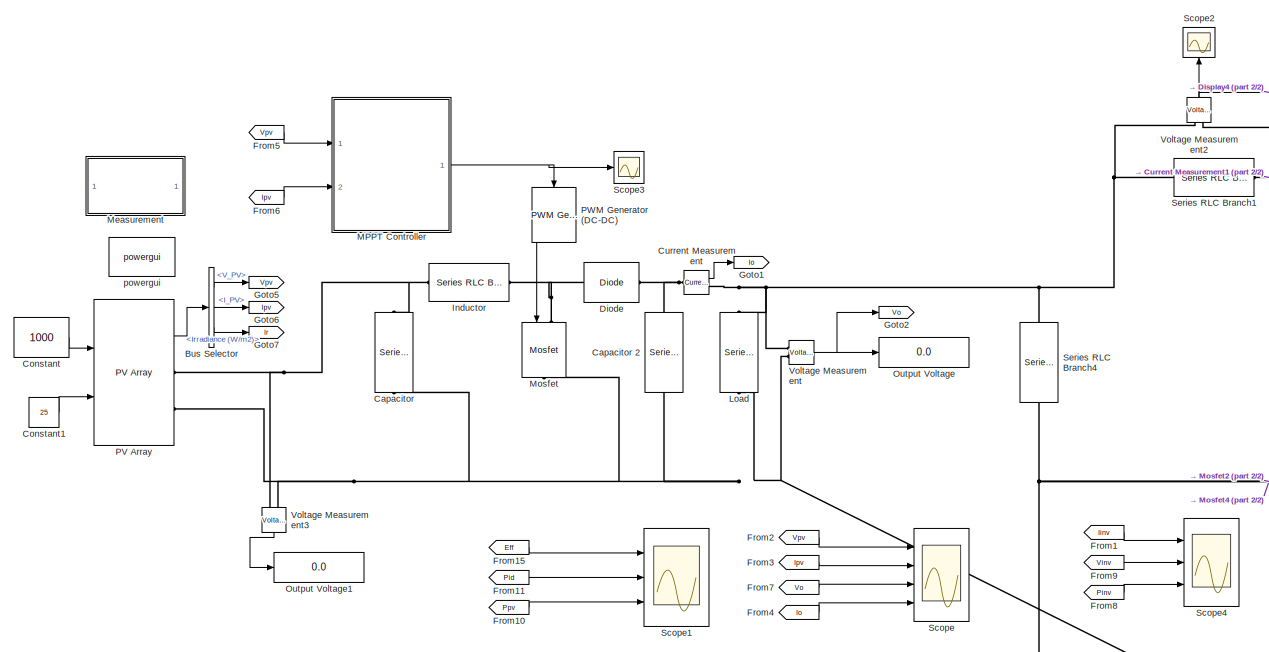
[diagram: root canvas - part 1/2, middle left region]
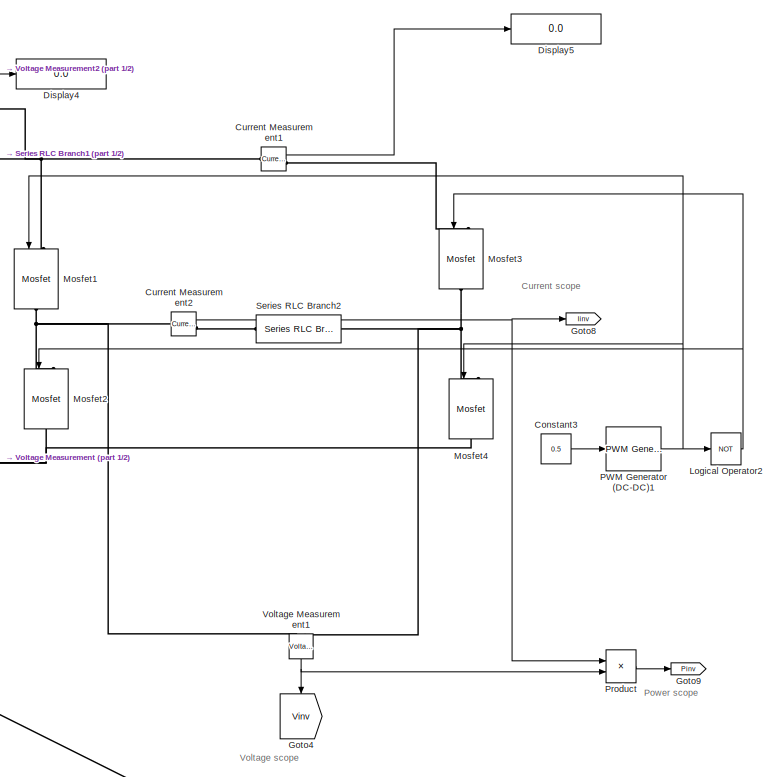
[diagram: root canvas - part 2/2, right side, full height]
MODEL slx_9b4c780f4939
KIND model
CONFIG AbsTol = auto
CONFIG EnableMultiTasking = off
CONFIG FixedStep = 5e-6
CONFIG MaxStep = auto
CONFIG MinStep = auto
CONFIG RelTol = 1e-3
CONFIG SampleTimeConstraint = Unconstrained
CONFIG Solver = ode3
CONFIG SolverName = ode3
CONFIG StartTime = 0.0
CONFIG StopTime = 2
BLOCK [BusSelector] Bus Selector
  OutputSignals = V_PV,I_PV,Irradiance (W/m2)
  Ports = [1, 3]
BLOCK [Reference] Capacitor  REF=powerlib/Elements/Series RLC Branch
  NameLocation = left
  Ports = [0, 0, 0, 0, 0, 1, 1]
  SourceBlock = powerlib/Elements/Series RLC Branch
  SourceProductBaseCode = PS
  SourceType = Series RLC Branch
BLOCK [Reference] Capacitor 2  REF=powerlib/Elements/Series RLC Branch
  NameLocation = left
  Ports = [0, 0, 0, 0, 0, 1, 1]
  SourceBlock = powerlib/Elements/Series RLC Branch
  SourceProductBaseCode = PS
  SourceType = Series RLC Branch
BLOCK [Constant] Constant
  Value = 1000
BLOCK [Constant] Constant1
  Value = 25
BLOCK [Constant] Constant3
  Value = 0.5
BLOCK [Reference] Current Measurement  REF=powerlib/Measurements/Current Measurement
  Ports = [0, 1, 0, 0, 0, 1, 1]
  SourceBlock = powerlib/Measurements/Current Measurement
  SourceProductBaseCode = PS
  SourceType = Current Measurement
  UserDataPersistent = on
BLOCK [Reference] Current Measurement1  REF=powerlib/Measurements/Current Measurement
  Ports = [0, 1, 0, 0, 0, 1, 1]
  SourceBlock = powerlib/Measurements/Current Measurement
  SourceProductBaseCode = PS
  SourceType = Current Measurement
  UserDataPersistent = on
BLOCK [Reference] Current Measurement2  REF=powerlib/Measurements/Current Measurement
  Ports = [0, 1, 0, 0, 0, 1, 1]
  SourceBlock = powerlib/Measurements/Current Measurement
  SourceProductBaseCode = PS
  SourceType = Current Measurement
  UserDataPersistent = on
BLOCK [Reference] Diode  REF=powerlib/Power
Electronics/Diode
  Ports = [0, 0, 0, 0, 0, 1, 1]
  SourceBlock = powerlib/Power\nElectronics/Diode
  SourceProductBaseCode = PS
  SourceType = Diode
BLOCK [Display] Display4
  Decimation = 1
  Ports = [1]
BLOCK [Display] Display5
  Decimation = 1
  Ports = [1]
BLOCK [From] From1
  GotoTag = Iinv
BLOCK [From] From10
  GotoTag = Ppv
  TagVisibility = global
BLOCK [From] From11
  GotoTag = Pid
  TagVisibility = global
BLOCK [From] From15
  GotoTag = Eff
  TagVisibility = global
BLOCK [From] From2
  GotoTag = Vpv
  TagVisibility = global
BLOCK [From] From3
  GotoTag = Ipv
  TagVisibility = global
BLOCK [From] From4
  GotoTag = Io
BLOCK [From] From5
  GotoTag = Vpv
  TagVisibility = global
BLOCK [From] From6
  GotoTag = Ipv
  TagVisibility = global
BLOCK [From] From7
  GotoTag = Vo
BLOCK [From] From8
  GotoTag = Pinv
BLOCK [From] From9
  GotoTag = Vinv
BLOCK [Goto] Goto1
  GotoTag = Io
BLOCK [Goto] Goto2
  GotoTag = Vo
BLOCK [Goto] Goto4
  GotoTag = Vinv
  NameLocation = left
BLOCK [Goto] Goto5
  GotoTag = Vpv
  TagVisibility = global
BLOCK [Goto] Goto6
  GotoTag = Ipv
  TagVisibility = global
BLOCK [Goto] Goto7
  GotoTag = Ir
  TagVisibility = global
BLOCK [Goto] Goto8
  GotoTag = Iinv
BLOCK [Goto] Goto9
  GotoTag = Pinv
BLOCK [Reference] Inductor  REF=powerlib/Elements/Series RLC Branch
  Ports = [0, 0, 0, 0, 0, 1, 1]
  SourceBlock = powerlib/Elements/Series RLC Branch
  SourceProductBaseCode = PS
  SourceType = Series RLC Branch
BLOCK [Reference] Load  REF=powerlib/Elements/Series RLC Branch
  NameLocation = left
  Ports = [0, 0, 0, 0, 0, 1, 1]
  SourceBlock = powerlib/Elements/Series RLC Branch
  SourceProductBaseCode = PS
  SourceType = Series RLC Branch
BLOCK [Logic] Logical Operator2
  AllPortsSameDT = off
  Operator = NOT
  OutDataTypeStr = boolean
  Ports = [1, 1]
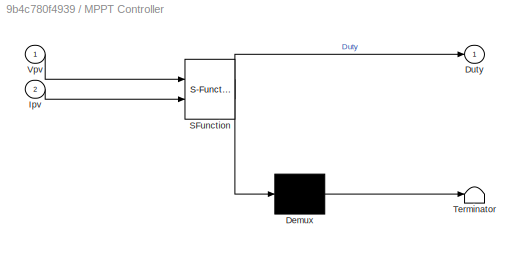
BLOCK [SubSystem] MPPT Controller
  ErrorFcn = Stateflow.Translate.translate
  PermitHierarchicalResolution = ExplicitOnly
  Ports = [2, 1]
  RequestExecContextInheritance = off
  SFBlockType = MATLAB Function
  TreatAsAtomicUnit = on
BLOCK [Demux] MPPT Controller/ Demux 
  Outputs = 1
  Ports = [1, 1]
BLOCK [S-Function] MPPT Controller/ SFunction 
  EnableBusSupport = on
  FunctionName = sf_sfun
  PortCounts = [2 2]
  Ports = [2, 2]
  SFcnIsStateOwnerBlock = off
  SFunctionDeploymentMode = off
  Tag = Stateflow S-Function 2
BLOCK [Terminator] MPPT Controller/ Terminator 
BLOCK [Outport] MPPT Controller/Duty
BLOCK [Inport] MPPT Controller/Ipv
  Port = 2
BLOCK [Inport] MPPT Controller/Vpv
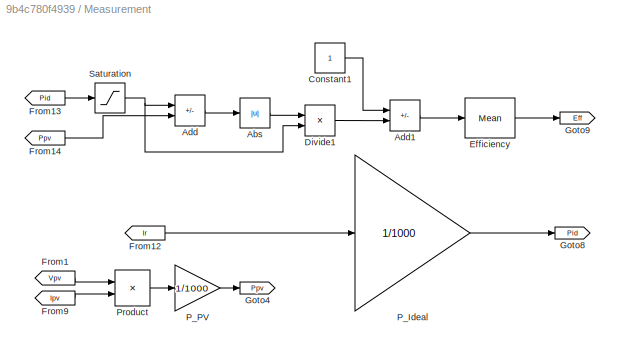
BLOCK [SubSystem] Measurement
  Ports = []
  RequestExecContextInheritance = off
BLOCK [Abs] Measurement/Abs
  SaturateOnIntegerOverflow = off
BLOCK [Sum] Measurement/Add
  IconShape = rectangular
  Inputs = +-
  Ports = [2, 1]
BLOCK [Sum] Measurement/Add1
  IconShape = rectangular
  Inputs = +-
  Ports = [2, 1]
BLOCK [Constant] Measurement/Constant1
BLOCK [Product] Measurement/Divide1
  Inputs = */
  NameLocation = top
  Ports = [2, 1]
BLOCK [Reference] Measurement/Efficiency  REF=powerlib_meascontrol/Measurements/Mean
  Ports = [1, 1]
  SourceBlock = powerlib_meascontrol/Measurements/Mean
  SourceProductBaseCode = PS
  SourceType = Mean
BLOCK [From] Measurement/From1
  GotoTag = Vpv
  TagVisibility = global
BLOCK [From] Measurement/From12
  GotoTag = Ir
  TagVisibility = global
BLOCK [From] Measurement/From13
  GotoTag = Pid
  TagVisibility = global
BLOCK [From] Measurement/From14
  GotoTag = Ppv
  TagVisibility = global
BLOCK [From] Measurement/From9
  GotoTag = Ipv
  TagVisibility = global
BLOCK [Goto] Measurement/Goto4
  GotoTag = Ppv
  TagVisibility = global
BLOCK [Goto] Measurement/Goto8
  GotoTag = Pid
  TagVisibility = global
BLOCK [Goto] Measurement/Goto9
  GotoTag = Eff
  TagVisibility = global
BLOCK [Gain] Measurement/P_Ideal
  Gain = 1/1000
BLOCK [Gain] Measurement/P_PV
  Gain = 1/1000
BLOCK [Product] Measurement/Product
  Inputs = **
  Ports = [2, 1]
BLOCK [Saturate] Measurement/Saturation
  LowerLimit = 0.001
  UpperLimit = 1000
BLOCK [Reference] Mosfet  REF=powerlib/Power
Electronics/Mosfet
  NameLocation = left
  Ports = [1, 0, 0, 0, 0, 1, 1]
  SourceBlock = powerlib/Power\nElectronics/Mosfet
  SourceProductBaseCode = PS
  SourceType = Mosfet
BLOCK [Reference] Mosfet1  REF=powerlib/Power
Electronics/Mosfet
  NameLocation = left
  Ports = [1, 0, 0, 0, 0, 1, 1]
  SourceBlock = powerlib/Power\nElectronics/Mosfet
  SourceProductBaseCode = PS
  SourceType = Mosfet
BLOCK [Reference] Mosfet2  REF=powerlib/Power
Electronics/Mosfet
  NameLocation = left
  Ports = [1, 0, 0, 0, 0, 1, 1]
  SourceBlock = powerlib/Power\nElectronics/Mosfet
  SourceProductBaseCode = PS
  SourceType = Mosfet
BLOCK [Reference] Mosfet3  REF=powerlib/Power
Electronics/Mosfet
  NameLocation = left
  Ports = [1, 0, 0, 0, 0, 1, 1]
  SourceBlock = powerlib/Power\nElectronics/Mosfet
  SourceProductBaseCode = PS
  SourceType = Mosfet
BLOCK [Reference] Mosfet4  REF=powerlib/Power
Electronics/Mosfet
  NameLocation = left
  Ports = [1, 0, 0, 0, 0, 1, 1]
  SourceBlock = powerlib/Power\nElectronics/Mosfet
  SourceProductBaseCode = PS
  SourceType = Mosfet
BLOCK [Display] Output Voltage
  Decimation = 1
  Ports = [1]
BLOCK [Display] Output Voltage1
  Decimation = 1
  Ports = [1]
BLOCK [Reference] PV Array  REF=re_lib/Solar/PV Array
  Ports = [2, 1, 0, 0, 0, 0, 2]
  SourceBlock = re_lib/Solar/PV Array
  SourceProductBaseCode = PS
  SourceType = PV array
BLOCK [Reference] PWM Generator (DC-DC)  REF=powerlib_meascontrol/Pulse & Signal
Generators/PWM Generator
(DC-DC)
  NameLocation = left
  Ports = [1, 1]
  SourceBlock = powerlib_meascontrol/Pulse & Signal\nGenerators/PWM Generator\n(DC-DC)
  SourceProductBaseCode = PS
  SourceType = PWM Generator (DC-DC)
BLOCK [Reference] PWM Generator (DC-DC)1  REF=powerlib_meascontrol/Pulse & Signal
Generators/PWM Generator
(DC-DC)
  Ports = [1, 1]
  SourceBlock = powerlib_meascontrol/Pulse & Signal\nGenerators/PWM Generator\n(DC-DC)
  SourceProductBaseCode = PS
  SourceType = PWM Generator (DC-DC)
BLOCK [Product] Product
  Ports = [2, 1]
BLOCK [Scope] Scope
  Floating = off
  NumInputPorts = 4
  Ports = [4]
  ScopeSpecificationString = Simulink.scopes.TimeScopeBlockCfg('CurrentConfiguration', extmgr.ConfigurationSet(extmgr.Configuration('Core','General UI',true,'FigureColor',[0.941176470588235 0.941176470588235 0.941176470588235]),extmgr.Configuration('Core','Source UI',true),extmgr.Configuration('Sources','WiredSimulink',true,'DataLoggingSaveFormat','Array','DataLoggingDecimation','1','DataLoggingDecimateData',true),extmgr.Conf...<+4508ch>
BLOCK [Scope] Scope1
  Floating = off
  NumInputPorts = 3
  Ports = [3]
  ScopeSpecificationString = Simulink.scopes.TimeScopeBlockCfg('CurrentConfiguration', extmgr.ConfigurationSet(extmgr.Configuration('Core','General UI',true,'FigureColor',[0.941176470588235 0.941176470588235 0.941176470588235]),extmgr.Configuration('Core','Source UI',true),extmgr.Configuration('Sources','WiredSimulink',true,'DataLoggingSaveFormat','Array','DataLoggingDecimation','1','DataLoggingDecimateData',true,'DataLogging...<+2557ch>
BLOCK [Scope] Scope2
  Floating = off
  NameLocation = right
  NumInputPorts = 1
  Ports = [1]
  ScopeSpecificationString = Simulink.scopes.TimeScopeBlockCfg('CurrentConfiguration', extmgr.ConfigurationSet(extmgr.Configuration('Core','General UI',true),extmgr.Configuration('Core','Source UI',true),extmgr.Configuration('Sources','WiredSimulink',true,'DataLoggingVariableName','ScopeData1'),extmgr.Configuration('Visuals','Time Domain',true,'SerializedDisplays',{struct('MinYLimReal','-406.13508','MaxYLimReal','406.13205','...<+1492ch>
BLOCK [Scope] Scope3
  Floating = off
  NumInputPorts = 1
  Ports = [1]
  ScopeSpecificationString = Simulink.scopes.TimeScopeBlockCfg('CurrentConfiguration', extmgr.ConfigurationSet(extmgr.Configuration('Core','General UI',true),extmgr.Configuration('Core','Source UI',true),extmgr.Configuration('Sources','WiredSimulink',true,'DataLoggingVariableName','ScopeData2'),extmgr.Configuration('Visuals','Time Domain',true,'SerializedDisplays',{struct('MinYLimReal','-0.00109','MaxYLimReal','0.01109','YLab...<+1428ch>
BLOCK [Scope] Scope4
  Floating = off
  NumInputPorts = 3
  Ports = [3]
  ScopeSpecificationString = Simulink.scopes.TimeScopeBlockCfg('CurrentConfiguration', extmgr.ConfigurationSet(extmgr.Configuration('Core','General UI',true,'FigureColor',[0.941176470588235 0.941176470588235 0.941176470588235]),extmgr.Configuration('Core','Source UI',true),extmgr.Configuration('Sources','WiredSimulink',true,'DataLoggingVariableName','ScopeData3'),extmgr.Configuration('Visuals','Time Domain',true,'SerializedDi...<+3497ch>
BLOCK [Reference] Series RLC Branch1  REF=powerlib/Elements/Series RLC Branch
  Ports = [0, 0, 0, 0, 0, 1, 1]
  SourceBlock = powerlib/Elements/Series RLC Branch
  SourceProductBaseCode = PS
  SourceType = Series RLC Branch
BLOCK [Reference] Series RLC Branch2  REF=powerlib/Elements/Series RLC Branch
  Ports = [0, 0, 0, 0, 0, 1, 1]
  SourceBlock = powerlib/Elements/Series RLC Branch
  SourceProductBaseCode = PS
  SourceType = Series RLC Branch
BLOCK [Reference] Series RLC Branch4  REF=powerlib/Elements/Series RLC Branch
  NameLocation = left
  Ports = [0, 0, 0, 0, 0, 1, 1]
  SourceBlock = powerlib/Elements/Series RLC Branch
  SourceProductBaseCode = PS
  SourceType = Series RLC Branch
BLOCK [Reference] Voltage Measurement  REF=powerlib/Measurements/Voltage Measurement
  Ports = [0, 1, 0, 0, 0, 2]
  SourceBlock = powerlib/Measurements/Voltage Measurement
  SourceProductBaseCode = PS
  SourceType = Voltage Measurement
  UserDataPersistent = on
BLOCK [Reference] Voltage Measurement1  REF=powerlib/Measurements/Voltage Measurement
  NameLocation = left
  Ports = [0, 1, 0, 0, 0, 2]
  SourceBlock = powerlib/Measurements/Voltage Measurement
  SourceProductBaseCode = PS
  SourceType = Voltage Measurement
  UserDataPersistent = on
BLOCK [Reference] Voltage Measurement2  REF=powerlib/Measurements/Voltage Measurement
  NameLocation = right
  Ports = [0, 1, 0, 0, 0, 2]
  SourceBlock = powerlib/Measurements/Voltage Measurement
  SourceProductBaseCode = PS
  SourceType = Voltage Measurement
  UserDataPersistent = on
BLOCK [Reference] Voltage Measurement3  REF=powerlib/Measurements/Voltage Measurement
  NameLocation = left
  Ports = [0, 1, 0, 0, 0, 2]
  SourceBlock = powerlib/Measurements/Voltage Measurement
  SourceProductBaseCode = PS
  SourceType = Voltage Measurement
  UserDataPersistent = on
BLOCK [Reference] powergui  REF=powerlib/powergui
  Ports = []
  Priority = 1
  SourceBlock = powerlib/powergui
  SourceProductBaseCode = PS
  SourceType = PSB option menu block
ANNOTATION (root): Current scope
ANNOTATION (root): Power scope
ANNOTATION (root): Voltage scope
LINE Bus Selector:1 -> Goto5:1
LINE Bus Selector:2 -> Goto6:1
LINE Bus Selector:3 -> Goto7:1
LINE Constant1:1 -> PV Array:2
LINE Constant3:1 -> PWM Generator (DC-DC)1:1
LINE Constant:1 -> PV Array:1
LINE Current Measurement1:1 -> Display5:1
NET Current Measurement2:1 -> Goto8:1, Product:1
LINE Current Measurement:1 -> Goto1:1
LINE From10:1 -> Scope1:3
LINE From11:1 -> Scope1:2
LINE From15:1 -> Scope1:1
LINE From1:1 -> Scope4:1
LINE From2:1 -> Scope:1
LINE From3:1 -> Scope:2
LINE From4:1 -> Scope:4
LINE From5:1 -> MPPT Controller:1
LINE From6:1 -> MPPT Controller:2
LINE From7:1 -> Scope:3
LINE From8:1 -> Scope4:3
LINE From9:1 -> Scope4:2
NET Logical Operator2:1 -> Mosfet2:1, Mosfet3:1
NET MPPT Controller:1 -> PWM Generator (DC-DC):1, Scope3:1
LINE Measurement/Abs:1 -> Measurement/Divide1:1
LINE Measurement/Add1:1 -> Measurement/Efficiency:1
LINE Measurement/Add:1 -> Measurement/Abs:1
LINE Measurement/Constant1:1 -> Measurement/Add1:1
LINE Measurement/Divide1:1 -> Measurement/Add1:2
LINE Measurement/Efficiency:1 -> Measurement/Goto9:1
LINE Measurement/From12:1 -> Measurement/P_Ideal:1
LINE Measurement/From13:1 -> Measurement/Saturation:1
LINE Measurement/From14:1 -> Measurement/Add:2
LINE Measurement/From1:1 -> Measurement/Product:1
LINE Measurement/From9:1 -> Measurement/Product:2
LINE Measurement/P_Ideal:1 -> Measurement/Goto8:1
LINE Measurement/P_PV:1 -> Measurement/Goto4:1
LINE Measurement/Product:1 -> Measurement/P_PV:1
NET Measurement/Saturation:1 -> Measurement/Add:1, Measurement/Divide1:2
LINE PV Array:1 -> Bus Selector:1
NET PWM Generator (DC-DC)1:1 -> Logical Operator2:1, Mosfet1:1, Mosfet4:1
LINE PWM Generator (DC-DC):1 -> Mosfet:1
LINE Product:1 -> Goto9:1
NET Voltage Measurement1:1 -> Goto4:1, Product:2
NET Voltage Measurement2:1 -> Display4:1, Scope2:1
LINE Voltage Measurement3:1 -> Output Voltage1:1
NET Voltage Measurement:1 -> Goto2:1, Output Voltage:1
PNET net1: Capacitor 2:LConn1 -- Current Measurement:LConn1 -- Diode:RConn1
PNET net2: Capacitor 2:RConn1 -- Capacitor:RConn1 -- Load:RConn1 -- Mosfet2:RConn1 -- Mosfet4:RConn1 -- Mosfet:RConn1 -- PV Array:RConn2 -- Series RLC Branch4:RConn1 -- Voltage Measurement3:LConn2 -- Voltage Measurement:LConn2
PNET net3: Capacitor:LConn1 -- Inductor:LConn1 -- PV Array:RConn1 -- Voltage Measurement3:LConn1
PNET net4: Current Measurement1:LConn1 -- Mosfet1:LConn1 -- Series RLC Branch1:RConn1 -- Voltage Measurement2:LConn2
PLINE Current Measurement1:RConn1 -- Mosfet3:LConn1
PNET net5: Current Measurement2:LConn1 -- Mosfet1:RConn1 -- Mosfet2:LConn1 -- Voltage Measurement1:LConn1
PLINE Current Measurement2:RConn1 -- Series RLC Branch2:LConn1
PNET net6: Current Measurement:RConn1 -- Load:LConn1 -- Series RLC Branch1:LConn1 -- Series RLC Branch4:LConn1 -- Voltage Measurement2:LConn1 -- Voltage Measurement:LConn1
PNET net7: Diode:LConn1 -- Inductor:RConn1 -- Mosfet:LConn1
PNET net8: Mosfet3:RConn1 -- Mosfet4:LConn1 -- Series RLC Branch2:RConn1 -- Voltage Measurement1:LConn2
note: NET lines group one-source signal fan-out (src -> all destinations, sorted); 1:1 wires keep LINE; PNET lines group multi-terminal physical nets as a canonical sorted terminal list (undirected conserving connections); 2-terminal nets keep the pairwise PLINE form
CHART MPPT Controller states=1 transitions=1
  STATE_LABEL 'eML_blk_kernel()'
  STATE_LABEL 'SCRIPT:\n%Declare and initialise\xa0the function\nfunction Duty = PNO(Vpv, Ipv)\n\n%Declare the variables\nDelta = 125e-6;\nduty_init = 0.01;\nduty_min=0;\nduty_max=0.99;\n\n%A persistent variable is a local variable in a MATLAB® function that retains its value in memory between calls to the function. \n%For code generation, functions must initialize a persistent variable if it is empty. \npersistent Vold Pold d...<+738ch>'
CHART  states=0 transitions=0
